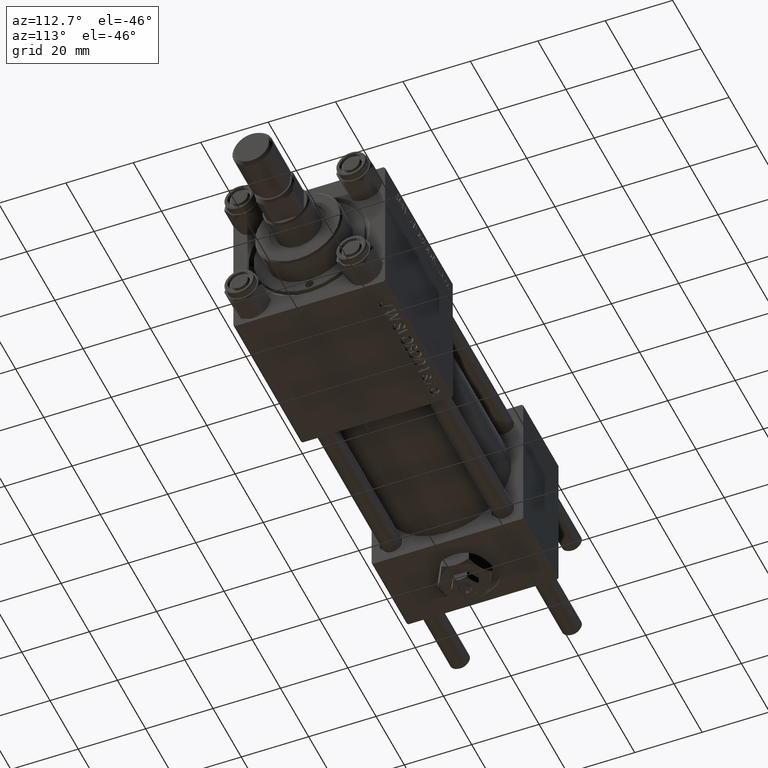
[diagram: clean part render]
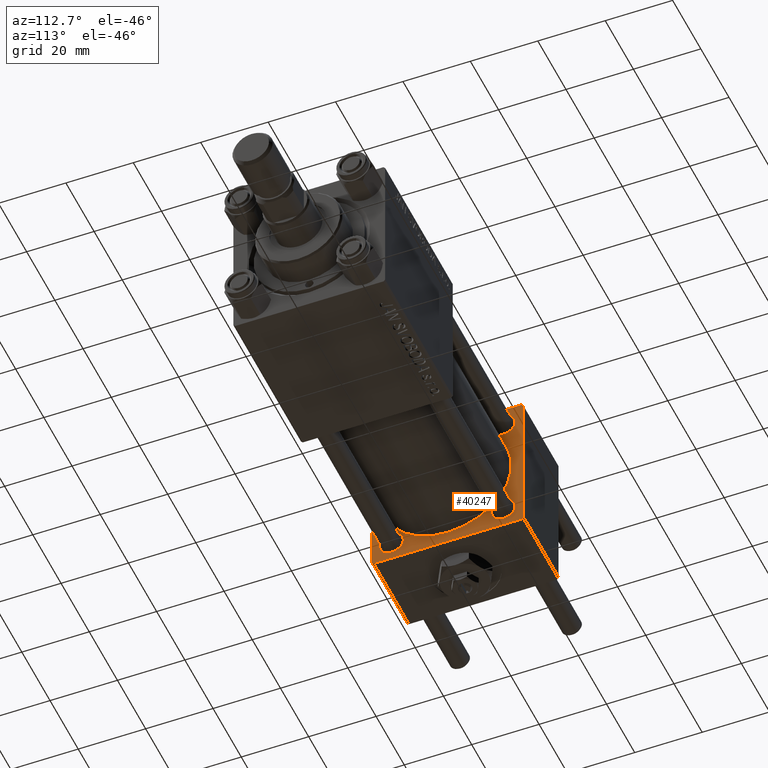
[diagram: same view with one face highlighted and labeled with its STEP entity id]
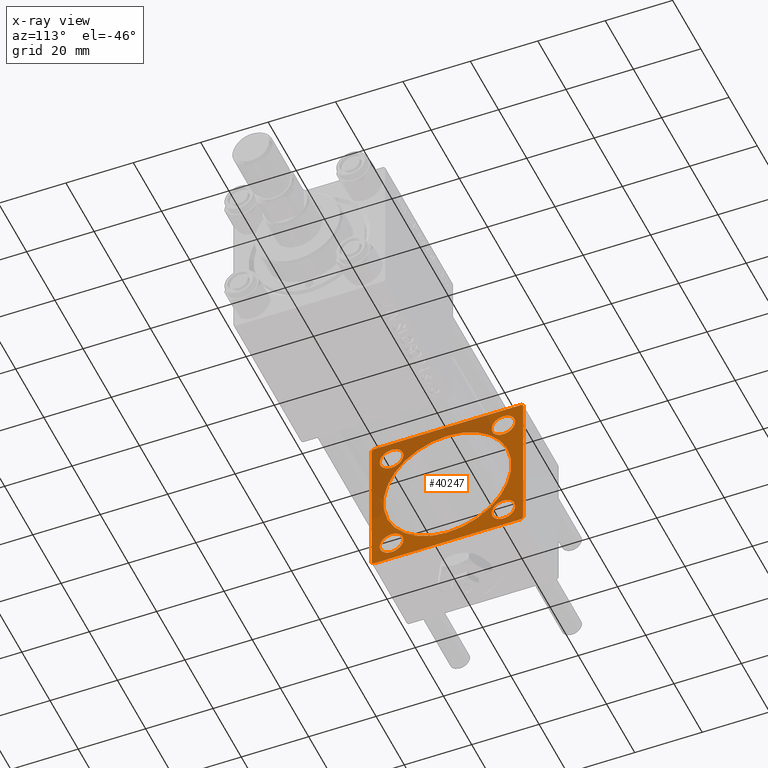
[diagram: x-ray of the same camera — body ghosted, the highlighted face saturated]
A machine part, auxiliary view. The second image highlights one B-rep face of the part: STEP entity #40247.
The next image is the same camera in x-ray: the body ghosted, the highlighted face saturated — about 36% of this face is hidden behind the body in this view.
In plain terms, the highlighted planar face has unit normal (-1, 0, 0).
Its self-contained STEP definition (entity closure, byte-faithful):
#264 = VERTEX_POINT ( 'NONE', #10781 ) ;
#568 = FACE_BOUND ( 'NONE', #17898, .T. ) ;
#615 = LINE ( 'NONE', #40476, #48434 ) ;
#2485 = CARTESIAN_POINT ( 'NONE',  ( 25.00000000000000000, 22.50000000000000000, -22.49999999999999645 ) ) ;
#2920 = VERTEX_POINT ( 'NONE', #28649 ) ;
#3271 = EDGE_CURVE ( 'NONE', #21814, #5529, #30938, .T. ) ;
#3362 = VECTOR ( 'NONE', #47420, 1000.000000000000000 ) ;
#3603 = LINE ( 'NONE', #43988, #3362 ) ;
#4219 = CARTESIAN_POINT ( 'NONE',  ( 25.00000000000000000, -22.50000000000000000, -21.99999999999997158 ) ) ;
#4396 = EDGE_CURVE ( 'NONE', #46364, #13694, #39637, .T. ) ;
#4744 = EDGE_LOOP ( 'NONE', ( #44951, #47399 ) ) ;
#5529 = VERTEX_POINT ( 'NONE', #24372 ) ;
#5661 = ORIENTED_EDGE ( 'NONE', *, *, #19361, .F. ) ;
#6167 = ORIENTED_EDGE ( 'NONE', *, *, #48563, .T. ) ;
#6641 = DIRECTION ( 'NONE',  ( -1.000000000000000000, 0.000000000000000000, -0.000000000000000000 ) ) ;
#6811 = EDGE_LOOP ( 'NONE', ( #30636, #6167 ) ) ;
#6825 = EDGE_CURVE ( 'NONE', #29394, #31347, #46983, .T. ) ;
#7091 = EDGE_CURVE ( 'NONE', #2920, #21728, #14915, .T. ) ;
#7138 = AXIS2_PLACEMENT_3D ( 'NONE', #51631, #12019, #40266 ) ;
#7361 = DIRECTION ( 'NONE',  ( 0.000000000000000000, 0.000000000000000000, 1.000000000000000000 ) ) ;
#7493 = VERTEX_POINT ( 'NONE', #4219 ) ;
#7750 = DIRECTION ( 'NONE',  ( 0.000000000000000000, 0.000000000000000000, 1.000000000000000000 ) ) ;
#7955 = FACE_BOUND ( 'NONE', #13826, .T. ) ;
#8263 = DIRECTION ( 'NONE',  ( -1.000000000000000000, 0.000000000000000000, -0.000000000000000000 ) ) ;
#8653 = VECTOR ( 'NONE', #34168, 1000.000000000000000 ) ;
#9311 = EDGE_LOOP ( 'NONE', ( #52255, #30323 ) ) ;
#10186 = VECTOR ( 'NONE', #27802, 999.9999999999998863 ) ;
#10669 = CARTESIAN_POINT ( 'NONE',  ( 25.00000000000000000, -22.50000000000000000, 22.00000000000000000 ) ) ;
#10781 = CARTESIAN_POINT ( 'NONE',  ( 25.00000000000000000, 16.59999999999999787, -20.10000000000000853 ) ) ;
#10853 = CIRCLE ( 'NONE', #35415, 3.499999999999992895 ) ;
#10857 = CIRCLE ( 'NONE', #24327, 19.00000000000000000 ) ;
#10964 = CARTESIAN_POINT ( 'NONE',  ( 25.00000000000000000, 16.59999999999999787, 13.10000000000000142 ) ) ;
#11379 = DIRECTION ( 'NONE',  ( 0.000000000000000000, -1.000000000000000000, -7.709882115452476934E-17 ) ) ;
#11852 = ORIENTED_EDGE ( 'NONE', *, *, #49566, .T. ) ;
#12019 = DIRECTION ( 'NONE',  ( -1.000000000000000000, 0.000000000000000000, -0.000000000000000000 ) ) ;
#12240 = CARTESIAN_POINT ( 'NONE',  ( 25.00000000000000000, 21.99999999999999289, 22.50000000000000355 ) ) ;
#12532 = VERTEX_POINT ( 'NONE', #27209 ) ;
#12989 = CARTESIAN_POINT ( 'NONE',  ( 25.00000000000000000, -16.59999999999999076, 16.60000000000000853 ) ) ;
#13007 = DIRECTION ( 'NONE',  ( 0.000000000000000000, 0.000000000000000000, 1.000000000000000000 ) ) ;
#13694 = VERTEX_POINT ( 'NONE', #15847 ) ;
#13826 = EDGE_LOOP ( 'NONE', ( #43611, #30227 ) ) ;
#14591 = DIRECTION ( 'NONE',  ( -1.000000000000000000, 0.000000000000000000, -0.000000000000000000 ) ) ;
#14613 = CARTESIAN_POINT ( 'NONE',  ( 25.00000000000000000, -21.99999999999998579, -22.50000000000000711 ) ) ;
#14807 = DIRECTION ( 'NONE',  ( 0.000000000000000000, 0.000000000000000000, 1.000000000000000000 ) ) ;
#14915 = CIRCLE ( 'NONE', #22514, 3.499999999999992895 ) ;
#15847 = CARTESIAN_POINT ( 'NONE',  ( 25.00000000000000000, -21.99999999999997868, 22.50000000000000000 ) ) ;
#15850 = DIRECTION ( 'NONE',  ( -0.000000000000000000, 0.000000000000000000, 1.000000000000000000 ) ) ;
#15911 = DIRECTION ( 'NONE',  ( 1.000000000000000000, -0.000000000000000000, 0.000000000000000000 ) ) ;
#16142 = CARTESIAN_POINT ( 'NONE',  ( 25.00000000000000000, -16.59999999999999076, 13.10000000000001386 ) ) ;
#16896 = EDGE_CURVE ( 'NONE', #48763, #46364, #615, .T. ) ;
#16985 = CARTESIAN_POINT ( 'NONE',  ( 25.00000000000000000, 0.000000000000000000, 0.000000000000000000 ) ) ;
#17015 = ORIENTED_EDGE ( 'NONE', *, *, #48657, .T. ) ;
#17898 = EDGE_LOOP ( 'NONE', ( #37536, #26726 ) ) ;
#18526 = CIRCLE ( 'NONE', #50593, 3.500000000000003109 ) ;
#19241 = CARTESIAN_POINT ( 'NONE',  ( 25.00000000000000000, 0.000000000000000000, 19.00000000000000000 ) ) ;
#19361 = EDGE_CURVE ( 'NONE', #41113, #42265, #38651, .T. ) ;
#19418 = EDGE_CURVE ( 'NONE', #7493, #42265, #50793, .T. ) ;
#19803 = FACE_OUTER_BOUND ( 'NONE', #44496, .T. ) ;
#20136 = LINE ( 'NONE', #28331, #10186 ) ;
#20281 = VERTEX_POINT ( 'NONE', #10669 ) ;
#21500 = LINE ( 'NONE', #25994, #26973 ) ;
#21728 = VERTEX_POINT ( 'NONE', #16142 ) ;
#21814 = VERTEX_POINT ( 'NONE', #34089 ) ;
#21932 = CARTESIAN_POINT ( 'NONE',  ( 25.00000000000000000, -21.99999999999997158, -22.50000000000000711 ) ) ;
#22514 = AXIS2_PLACEMENT_3D ( 'NONE', #24058, #40183, #28292 ) ;
#23397 = VERTEX_POINT ( 'NONE', #38853 ) ;
#23636 = LINE ( 'NONE', #43472, #37962 ) ;
#23919 = CIRCLE ( 'NONE', #7138, 3.500000000000003109 ) ;
#24033 = DIRECTION ( 'NONE',  ( -1.000000000000000000, 0.000000000000000000, -0.000000000000000000 ) ) ;
#24058 = CARTESIAN_POINT ( 'NONE',  ( 25.00000000000000000, -16.59999999999999076, 16.60000000000000853 ) ) ;
#24078 = CARTESIAN_POINT ( 'NONE',  ( 25.00000000000000000, -16.59999999999999076, -16.60000000000000853 ) ) ;
#24327 = AXIS2_PLACEMENT_3D ( 'NONE', #35730, #15911, #7750 ) ;
#24372 = CARTESIAN_POINT ( 'NONE',  ( 25.00000000000000000, -16.59999999999999076, -20.09999999999999787 ) ) ;
#24929 = EDGE_CURVE ( 'NONE', #264, #23397, #23919, .T. ) ;
#25502 = EDGE_CURVE ( 'NONE', #5529, #21814, #35812, .T. ) ;
#25994 = CARTESIAN_POINT ( 'NONE',  ( 25.00000000000000000, 22.50000000000000000, -21.99999999999998224 ) ) ;
#26468 = CARTESIAN_POINT ( 'NONE',  ( 25.00000000000000000, 16.59999999999999787, 16.60000000000000497 ) ) ;
#26726 = ORIENTED_EDGE ( 'NONE', *, *, #7091, .T. ) ;
#26973 = VECTOR ( 'NONE', #37894, 1000.000000000000000 ) ;
#27209 = CARTESIAN_POINT ( 'NONE',  ( 25.00000000000000000, 22.50000000000000000, -21.99999999999996803 ) ) ;
#27802 = DIRECTION ( 'NONE',  ( -0.000000000000000000, -0.7071067811865525687, -0.7071067811865425767 ) ) ;
#28292 = DIRECTION ( 'NONE',  ( 0.000000000000000000, 0.000000000000000000, 1.000000000000000000 ) ) ;
#28331 = CARTESIAN_POINT ( 'NONE',  ( 25.00000000000000000, -22.50000000000000000, 22.00000000000000000 ) ) ;
#28649 = CARTESIAN_POINT ( 'NONE',  ( 25.00000000000000000, -16.59999999999999076, 20.10000000000000142 ) ) ;
#29394 = VERTEX_POINT ( 'NONE', #52187 ) ;
#30213 = DIRECTION ( 'NONE',  ( 0.000000000000000000, -1.000000000000000000, -2.312964634635742957E-16 ) ) ;
#30227 = ORIENTED_EDGE ( 'NONE', *, *, #6825, .F. ) ;
#30315 = ORIENTED_EDGE ( 'NONE', *, *, #19418, .T. ) ;
#30323 = ORIENTED_EDGE ( 'NONE', *, *, #3271, .T. ) ;
#30636 = ORIENTED_EDGE ( 'NONE', *, *, #24929, .T. ) ;
#30938 = CIRCLE ( 'NONE', #48659, 3.499999999999989342 ) ;
#31347 = VERTEX_POINT ( 'NONE', #19241 ) ;
#31358 = EDGE_CURVE ( 'NONE', #36609, #50964, #50251, .T. ) ;
#31701 = AXIS2_PLACEMENT_3D ( 'NONE', #48297, #51478, #39855 ) ;
#32244 = VECTOR ( 'NONE', #30213, 1000.000000000000000 ) ;
#32799 = DIRECTION ( 'NONE',  ( -1.000000000000000000, 0.000000000000000000, -0.000000000000000000 ) ) ;
#33117 = DIRECTION ( 'NONE',  ( 1.000000000000000000, -0.000000000000000000, 0.000000000000000000 ) ) ;
#33578 = DIRECTION ( 'NONE',  ( 0.000000000000000000, 0.000000000000000000, 1.000000000000000000 ) ) ;
#34089 = CARTESIAN_POINT ( 'NONE',  ( 25.00000000000000000, -16.59999999999999076, -13.10000000000001741 ) ) ;
#34168 = DIRECTION ( 'NONE',  ( 0.000000000000000000, 0.7071067811865426878, -0.7071067811865524577 ) ) ;
#34538 = ORIENTED_EDGE ( 'NONE', *, *, #45170, .F. ) ;
#35415 = AXIS2_PLACEMENT_3D ( 'NONE', #12989, #32799, #33578 ) ;
#35716 = DIRECTION ( 'NONE',  ( 0.000000000000000000, -0.7071067811865474617, 0.7071067811865474617 ) ) ;
#35730 = CARTESIAN_POINT ( 'NONE',  ( 25.00000000000000000, 0.000000000000000000, 0.000000000000000000 ) ) ;
#35812 = CIRCLE ( 'NONE', #51826, 3.499999999999989342 ) ;
#35931 = PLANE ( 'NONE',  #42113 ) ;
#36609 = VERTEX_POINT ( 'NONE', #37574 ) ;
#36721 = FACE_BOUND ( 'NONE', #9311, .T. ) ;
#37070 = CARTESIAN_POINT ( 'NONE',  ( 25.00000000000000000, 21.99999999999999289, -22.49999999999999645 ) ) ;
#37536 = ORIENTED_EDGE ( 'NONE', *, *, #42228, .T. ) ;
#37574 = CARTESIAN_POINT ( 'NONE',  ( 25.00000000000000000, 16.59999999999999787, 20.10000000000000853 ) ) ;
#37894 = DIRECTION ( 'NONE',  ( -0.000000000000000000, 0.7071067811865426878, 0.7071067811865524577 ) ) ;
#37962 = VECTOR ( 'NONE', #39762, 1000.000000000000000 ) ;
#38556 = AXIS2_PLACEMENT_3D ( 'NONE', #16985, #33117, #49227 ) ;
#38651 = LINE ( 'NONE', #2485, #32244 ) ;
#38853 = CARTESIAN_POINT ( 'NONE',  ( 25.00000000000000000, 16.59999999999999787, -13.10000000000000142 ) ) ;
#39055 = ORIENTED_EDGE ( 'NONE', *, *, #16896, .T. ) ;
#39274 = VECTOR ( 'NONE', #11379, 1000.000000000000000 ) ;
#39637 = LINE ( 'NONE', #47286, #39274 ) ;
#39646 = AXIS2_PLACEMENT_3D ( 'NONE', #44772, #51197, #7361 ) ;
#39673 = EDGE_CURVE ( 'NONE', #31347, #29394, #10857, .T. ) ;
#39762 = DIRECTION ( 'NONE',  ( 0.000000000000000000, 0.000000000000000000, -1.000000000000000000 ) ) ;
#39855 = DIRECTION ( 'NONE',  ( 0.000000000000000000, 0.000000000000000000, 1.000000000000000000 ) ) ;
#39899 = FACE_BOUND ( 'NONE', #4744, .T. ) ;
#40183 = DIRECTION ( 'NONE',  ( -1.000000000000000000, 0.000000000000000000, -0.000000000000000000 ) ) ;
#40247 = ADVANCED_FACE ( 'NONE', ( #36721, #40427, #568, #39899, #7955, #19803 ), #35931, .F. ) ;
#40266 = DIRECTION ( 'NONE',  ( 0.000000000000000000, 0.000000000000000000, 1.000000000000000000 ) ) ;
#40427 = FACE_BOUND ( 'NONE', #6811, .T. ) ;
#40476 = CARTESIAN_POINT ( 'NONE',  ( 25.00000000000000000, 21.99999999999999289, 22.50000000000000355 ) ) ;
#41113 = VERTEX_POINT ( 'NONE', #37070 ) ;
#41274 = EDGE_CURVE ( 'NONE', #50964, #36609, #18526, .T. ) ;
#41378 = ORIENTED_EDGE ( 'NONE', *, *, #4396, .T. ) ;
#42113 = AXIS2_PLACEMENT_3D ( 'NONE', #52046, #24033, #15850 ) ;
#42228 = EDGE_CURVE ( 'NONE', #21728, #2920, #10853, .T. ) ;
#42265 = VERTEX_POINT ( 'NONE', #21932 ) ;
#42804 = CARTESIAN_POINT ( 'NONE',  ( 25.00000000000000000, -16.59999999999999076, -16.60000000000000853 ) ) ;
#43472 = CARTESIAN_POINT ( 'NONE',  ( 25.00000000000000000, -22.50000000000000000, 22.50000000000000000 ) ) ;
#43611 = ORIENTED_EDGE ( 'NONE', *, *, #39673, .F. ) ;
#43988 = CARTESIAN_POINT ( 'NONE',  ( 25.00000000000000000, 22.50000000000000000, 22.50000000000000355 ) ) ;
#44496 = EDGE_LOOP ( 'NONE', ( #5661, #17015, #34538, #39055, #41378, #11852, #46287, #30315 ) ) ;
#44772 = CARTESIAN_POINT ( 'NONE',  ( 25.00000000000000000, 16.59999999999999787, -16.60000000000000497 ) ) ;
#44951 = ORIENTED_EDGE ( 'NONE', *, *, #41274, .T. ) ;
#45170 = EDGE_CURVE ( 'NONE', #48763, #12532, #3603, .T. ) ;
#45252 = EDGE_CURVE ( 'NONE', #20281, #7493, #23636, .T. ) ;
#46287 = ORIENTED_EDGE ( 'NONE', *, *, #45252, .T. ) ;
#46364 = VERTEX_POINT ( 'NONE', #12240 ) ;
#46983 = CIRCLE ( 'NONE', #38556, 19.00000000000000000 ) ;
#47219 = CIRCLE ( 'NONE', #39646, 3.500000000000003109 ) ;
#47286 = CARTESIAN_POINT ( 'NONE',  ( 25.00000000000000000, 22.50000000000000000, 22.50000000000000355 ) ) ;
#47345 = CARTESIAN_POINT ( 'NONE',  ( 25.00000000000000000, 22.50000000000000000, 21.99999999999999645 ) ) ;
#47399 = ORIENTED_EDGE ( 'NONE', *, *, #31358, .T. ) ;
#47420 = DIRECTION ( 'NONE',  ( 0.000000000000000000, 0.000000000000000000, -1.000000000000000000 ) ) ;
#48297 = CARTESIAN_POINT ( 'NONE',  ( 25.00000000000000000, 16.59999999999999787, 16.60000000000000497 ) ) ;
#48434 = VECTOR ( 'NONE', #35716, 1000.000000000000114 ) ;
#48563 = EDGE_CURVE ( 'NONE', #23397, #264, #47219, .T. ) ;
#48657 = EDGE_CURVE ( 'NONE', #41113, #12532, #21500, .T. ) ;
#48659 = AXIS2_PLACEMENT_3D ( 'NONE', #24078, #8263, #13007 ) ;
#48763 = VERTEX_POINT ( 'NONE', #47345 ) ;
#49227 = DIRECTION ( 'NONE',  ( 0.000000000000000000, 0.000000000000000000, 1.000000000000000000 ) ) ;
#49566 = EDGE_CURVE ( 'NONE', #13694, #20281, #20136, .T. ) ;
#50251 = CIRCLE ( 'NONE', #31701, 3.500000000000003109 ) ;
#50519 = DIRECTION ( 'NONE',  ( 0.000000000000000000, 0.000000000000000000, 1.000000000000000000 ) ) ;
#50593 = AXIS2_PLACEMENT_3D ( 'NONE', #26468, #14591, #50519 ) ;
#50793 = LINE ( 'NONE', #14613, #8653 ) ;
#50964 = VERTEX_POINT ( 'NONE', #10964 ) ;
#51197 = DIRECTION ( 'NONE',  ( -1.000000000000000000, 0.000000000000000000, -0.000000000000000000 ) ) ;
#51478 = DIRECTION ( 'NONE',  ( -1.000000000000000000, 0.000000000000000000, -0.000000000000000000 ) ) ;
#51631 = CARTESIAN_POINT ( 'NONE',  ( 25.00000000000000000, 16.59999999999999787, -16.60000000000000497 ) ) ;
#51826 = AXIS2_PLACEMENT_3D ( 'NONE', #42804, #6641, #14807 ) ;
#52046 = CARTESIAN_POINT ( 'NONE',  ( 25.00000000000000000, 0.000000000000000000, 0.000000000000000000 ) ) ;
#52187 = CARTESIAN_POINT ( 'NONE',  ( 25.00000000000000000, 2.326828918379970970E-15, -19.00000000000000000 ) ) ;
#52255 = ORIENTED_EDGE ( 'NONE', *, *, #25502, .T. ) ;